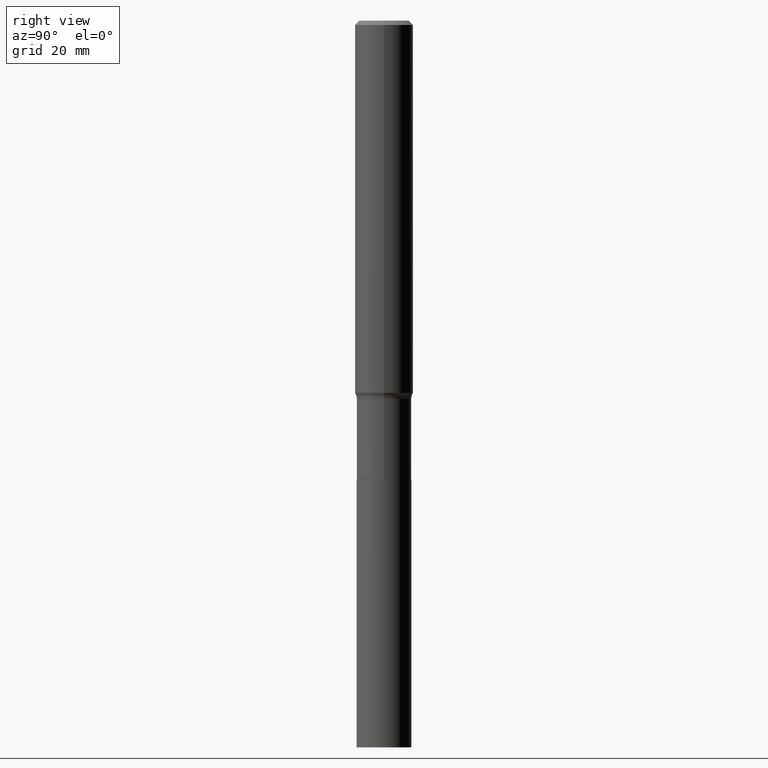
[diagram: clean part render]
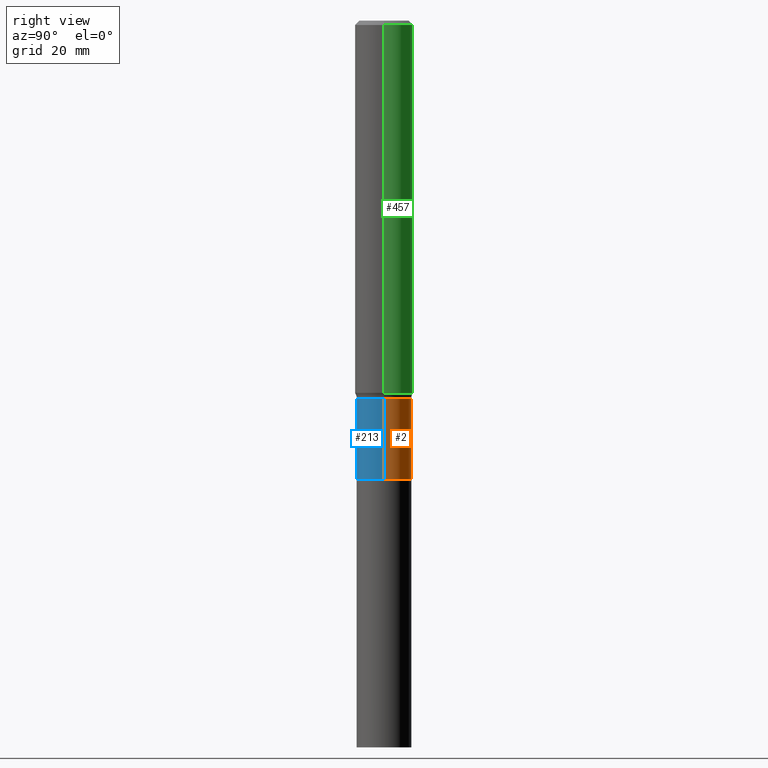
[diagram: same view with three faces highlighted in distinct colors, each labeled with its STEP entity id]
A machine part, right view with three faces highlighted in distinct colors.
Their STEP definitions:

[orange] entity #2 — the highlighted cylindrical surface (edge-blend (fillet) strip) has radius 4.7003 mm, axis along (-0, 0, 1).
#1 = ORIENTED_EDGE ( 'NONE', *, *, #451, .F. ) ;
#2 = ADVANCED_FACE ( 'NONE', ( #411 ), #162, .T. ) ;
#14 = VERTEX_POINT ( 'NONE', #90 ) ;
#26 = CARTESIAN_POINT ( 'NONE',  ( 7.604918893474536978E-29, -1.085780866753441274E-14, -3.109799999999999898 ) ) ;
#37 = ORIENTED_EDGE ( 'NONE', *, *, #340, .T. ) ;
#56 = CARTESIAN_POINT ( 'NONE',  ( -0.1850499999999999923, -8.588029188836748263E-15, -3.109799999999999898 ) ) ;
#90 = CARTESIAN_POINT ( 'NONE',  ( 0.1850499999999999923, -1.215000591104025780E-14, -3.109799999999999898 ) ) ;
#98 = DIRECTION ( 'NONE',  ( -2.445468806185136597E-29, 3.491481338843145583E-15, 1.000000000000000000 ) ) ;
#114 = VERTEX_POINT ( 'NONE', #341 ) ;
#139 = CARTESIAN_POINT ( 'NONE',  ( -0.1850499999999999368, 1.314859332524064945E-15, -9.102489384516700747E-30 ) ) ;
#154 = DIRECTION ( 'NONE',  ( 1.000000000000000000, -6.982962677686267499E-15, 4.876176775795935793E-29 ) ) ;
#162 = CYLINDRICAL_SURFACE ( 'NONE', #256, 0.1850499999999999368 ) ;
#170 = CARTESIAN_POINT ( 'NONE',  ( 0.1850499999999999090, -1.024016561869305716E-14, -2.562800000000000189 ) ) ;
#183 = DIRECTION ( 'NONE',  ( 1.000000000000000000, -6.982962677686272233E-15, 0.000000000000000000 ) ) ;
#194 = DIRECTION ( 'NONE',  ( 1.000000000000000000, -6.982962677686265133E-15, 0.000000000000000000 ) ) ;
#202 = CARTESIAN_POINT ( 'NONE',  ( 0.000000000000000000, 0.000000000000000000, 0.000000000000000000 ) ) ;
#210 = LINE ( 'NONE', #388, #461 ) ;
#214 = DIRECTION ( 'NONE',  ( -2.445468806185136877E-29, 3.491481338843145188E-15, 1.000000000000000000 ) ) ;
#241 = VECTOR ( 'NONE', #462, 39.37007874015748143 ) ;
#256 = AXIS2_PLACEMENT_3D ( 'NONE', #202, #310, #154 ) ;
#280 = CARTESIAN_POINT ( 'NONE',  ( 6.267247456491268883E-29, -8.947968375187213679E-15, -2.562800000000000189 ) ) ;
#283 = AXIS2_PLACEMENT_3D ( 'NONE', #280, #417, #194 ) ;
#300 = CIRCLE ( 'NONE', #453, 0.1850499999999999923 ) ;
#308 = EDGE_CURVE ( 'NONE', #14, #391, #210, .T. ) ;
#310 = DIRECTION ( 'NONE',  ( -2.445468806185136597E-29, 3.491481338843145583E-15, 1.000000000000000000 ) ) ;
#340 = EDGE_CURVE ( 'NONE', #14, #346, #300, .T. ) ;
#341 = CARTESIAN_POINT ( 'NONE',  ( -0.1850499999999999090, -8.588029188836748263E-15, -2.562800000000000189 ) ) ;
#346 = VERTEX_POINT ( 'NONE', #56 ) ;
#348 = EDGE_CURVE ( 'NONE', #346, #114, #352, .T. ) ;
#352 = LINE ( 'NONE', #139, #241 ) ;
#364 = ORIENTED_EDGE ( 'NONE', *, *, #348, .T. ) ;
#388 = CARTESIAN_POINT ( 'NONE',  ( 0.1850499999999999368, -1.292197243505843287E-15, 9.023365123610376264E-30 ) ) ;
#391 = VERTEX_POINT ( 'NONE', #170 ) ;
#411 = FACE_OUTER_BOUND ( 'NONE', #463, .T. ) ;
#412 = ORIENTED_EDGE ( 'NONE', *, *, #308, .F. ) ;
#417 = DIRECTION ( 'NONE',  ( -2.445468806185136597E-29, 3.491481338843145583E-15, 1.000000000000000000 ) ) ;
#438 = CIRCLE ( 'NONE', #283, 0.1850499999999999090 ) ;
#451 = EDGE_CURVE ( 'NONE', #391, #114, #438, .T. ) ;
#453 = AXIS2_PLACEMENT_3D ( 'NONE', #26, #98, #183 ) ;
#461 = VECTOR ( 'NONE', #214, 39.37007874015748143 ) ;
#462 = DIRECTION ( 'NONE',  ( -2.445468806185136877E-29, 3.491481338843145188E-15, 1.000000000000000000 ) ) ;
#463 = EDGE_LOOP ( 'NONE', ( #37, #364, #1, #412 ) ) ;

[blue] entity #213 — the highlighted cylindrical surface (edge-blend (fillet) strip) has radius 4.7003 mm, axis along (-0, 0, 1).
#5 = EDGE_CURVE ( 'NONE', #114, #391, #161, .T. ) ;
#14 = VERTEX_POINT ( 'NONE', #90 ) ;
#30 = ORIENTED_EDGE ( 'NONE', *, *, #348, .F. ) ;
#42 = CARTESIAN_POINT ( 'NONE',  ( 6.267247456491268883E-29, -8.947968375187213679E-15, -2.562800000000000189 ) ) ;
#56 = CARTESIAN_POINT ( 'NONE',  ( -0.1850499999999999923, -8.588029188836748263E-15, -3.109799999999999898 ) ) ;
#79 = FACE_OUTER_BOUND ( 'NONE', #141, .T. ) ;
#84 = ORIENTED_EDGE ( 'NONE', *, *, #5, .F. ) ;
#85 = AXIS2_PLACEMENT_3D ( 'NONE', #42, #236, #376 ) ;
#90 = CARTESIAN_POINT ( 'NONE',  ( 0.1850499999999999923, -1.215000591104025780E-14, -3.109799999999999898 ) ) ;
#97 = CARTESIAN_POINT ( 'NONE',  ( 7.604918893474536978E-29, -1.085780866753441274E-14, -3.109799999999999898 ) ) ;
#114 = VERTEX_POINT ( 'NONE', #341 ) ;
#129 = AXIS2_PLACEMENT_3D ( 'NONE', #97, #425, #356 ) ;
#130 = DIRECTION ( 'NONE',  ( 1.000000000000000000, -6.982962677686267499E-15, 4.876176775795935793E-29 ) ) ;
#139 = CARTESIAN_POINT ( 'NONE',  ( -0.1850499999999999368, 1.314859332524064945E-15, -9.102489384516700747E-30 ) ) ;
#141 = EDGE_LOOP ( 'NONE', ( #30, #151, #336, #84 ) ) ;
#151 = ORIENTED_EDGE ( 'NONE', *, *, #357, .T. ) ;
#161 = CIRCLE ( 'NONE', #85, 0.1850499999999999090 ) ;
#170 = CARTESIAN_POINT ( 'NONE',  ( 0.1850499999999999090, -1.024016561869305716E-14, -2.562800000000000189 ) ) ;
#210 = LINE ( 'NONE', #388, #461 ) ;
#213 = ADVANCED_FACE ( 'NONE', ( #79 ), #268, .T. ) ;
#214 = DIRECTION ( 'NONE',  ( -2.445468806185136877E-29, 3.491481338843145188E-15, 1.000000000000000000 ) ) ;
#230 = CARTESIAN_POINT ( 'NONE',  ( 0.000000000000000000, 0.000000000000000000, 0.000000000000000000 ) ) ;
#236 = DIRECTION ( 'NONE',  ( -2.445468806185136597E-29, 3.491481338843145583E-15, 1.000000000000000000 ) ) ;
#241 = VECTOR ( 'NONE', #462, 39.37007874015748143 ) ;
#257 = CIRCLE ( 'NONE', #129, 0.1850499999999999923 ) ;
#268 = CYLINDRICAL_SURFACE ( 'NONE', #309, 0.1850499999999999368 ) ;
#308 = EDGE_CURVE ( 'NONE', #14, #391, #210, .T. ) ;
#309 = AXIS2_PLACEMENT_3D ( 'NONE', #230, #339, #130 ) ;
#336 = ORIENTED_EDGE ( 'NONE', *, *, #308, .T. ) ;
#339 = DIRECTION ( 'NONE',  ( -2.445468806185136597E-29, 3.491481338843145583E-15, 1.000000000000000000 ) ) ;
#341 = CARTESIAN_POINT ( 'NONE',  ( -0.1850499999999999090, -8.588029188836748263E-15, -2.562800000000000189 ) ) ;
#346 = VERTEX_POINT ( 'NONE', #56 ) ;
#348 = EDGE_CURVE ( 'NONE', #346, #114, #352, .T. ) ;
#352 = LINE ( 'NONE', #139, #241 ) ;
#356 = DIRECTION ( 'NONE',  ( 1.000000000000000000, -6.982962677686272233E-15, 0.000000000000000000 ) ) ;
#357 = EDGE_CURVE ( 'NONE', #346, #14, #257, .T. ) ;
#376 = DIRECTION ( 'NONE',  ( 1.000000000000000000, -6.982962677686265133E-15, 0.000000000000000000 ) ) ;
#388 = CARTESIAN_POINT ( 'NONE',  ( 0.1850499999999999368, -1.292197243505843287E-15, 9.023365123610376264E-30 ) ) ;
#391 = VERTEX_POINT ( 'NONE', #170 ) ;
#425 = DIRECTION ( 'NONE',  ( -2.445468806185136597E-29, 3.491481338843145583E-15, 1.000000000000000000 ) ) ;
#461 = VECTOR ( 'NONE', #214, 39.37007874015748143 ) ;
#462 = DIRECTION ( 'NONE',  ( -2.445468806185136877E-29, 3.491481338843145188E-15, 1.000000000000000000 ) ) ;

[green] entity #457 — the highlighted cylindrical surface (edge-blend (fillet) strip) has radius 5 mm, axis along (-0, 0, 1).
#3 = EDGE_LOOP ( 'NONE', ( #286, #272, #429, #426 ) ) ;
#11 = CIRCLE ( 'NONE', #277, 0.1968500000000003303 ) ;
#16 = DIRECTION ( 'NONE',  ( -2.445468806185136877E-29, 3.491481338843145188E-15, 1.000000000000000000 ) ) ;
#28 = VECTOR ( 'NONE', #16, 39.37007874015748143 ) ;
#33 = VERTEX_POINT ( 'NONE', #204 ) ;
#60 = EDGE_CURVE ( 'NONE', #368, #70, #384, .T. ) ;
#70 = VERTEX_POINT ( 'NONE', #312 ) ;
#100 = CARTESIAN_POINT ( 'NONE',  ( -0.1968500000000003303, -7.403257612201241372E-15, -2.520981822134387151 ) ) ;
#140 = CARTESIAN_POINT ( 'NONE',  ( 0.1968500000000001915, -1.374596203102542989E-15, 9.598753983154309266E-30 ) ) ;
#145 = AXIS2_PLACEMENT_3D ( 'NONE', #152, #188, #166 ) ;
#152 = CARTESIAN_POINT ( 'NONE',  ( 0.000000000000000000, 0.000000000000000000, 0.000000000000000000 ) ) ;
#155 = FACE_OUTER_BOUND ( 'NONE', #3, .T. ) ;
#166 = DIRECTION ( 'NONE',  ( 1.000000000000000000, -6.982962677686266711E-15, 4.876176775795935793E-29 ) ) ;
#178 = VERTEX_POINT ( 'NONE', #275 ) ;
#186 = DIRECTION ( 'NONE',  ( 1.000000000000000000, -6.982962677686266711E-15, 0.000000000000000000 ) ) ;
#188 = DIRECTION ( 'NONE',  ( -2.445468806185136597E-29, 3.491481338843145583E-15, 1.000000000000000000 ) ) ;
#190 = EDGE_CURVE ( 'NONE', #178, #70, #282, .T. ) ;
#204 = CARTESIAN_POINT ( 'NONE',  ( 0.1968500000000003303, -1.017655719064754629E-14, -2.520981822134387151 ) ) ;
#216 = AXIS2_PLACEMENT_3D ( 'NONE', #337, #322, #302 ) ;
#251 = LINE ( 'NONE', #140, #392 ) ;
#255 = DIRECTION ( 'NONE',  ( -2.445468806185136877E-29, 3.491481338843145188E-15, 1.000000000000000000 ) ) ;
#272 = ORIENTED_EDGE ( 'NONE', *, *, #60, .T. ) ;
#275 = CARTESIAN_POINT ( 'NONE',  ( 0.1968500000000000250, -1.477690918335233294E-15, -0.02952750000000018207 ) ) ;
#277 = AXIS2_PLACEMENT_3D ( 'NONE', #385, #321, #186 ) ;
#282 = CIRCLE ( 'NONE', #216, 0.1968500000000000250 ) ;
#286 = ORIENTED_EDGE ( 'NONE', *, *, #342, .T. ) ;
#293 = EDGE_CURVE ( 'NONE', #33, #178, #251, .T. ) ;
#302 = DIRECTION ( 'NONE',  ( 1.000000000000000000, -6.982962677686265922E-15, 0.000000000000000000 ) ) ;
#312 = CARTESIAN_POINT ( 'NONE',  ( -0.1968500000000000250, -3.053824476045086846E-15, -0.02952750000000018207 ) ) ;
#321 = DIRECTION ( 'NONE',  ( -2.445468806185136597E-29, 3.491481338843145583E-15, 1.000000000000000000 ) ) ;
#322 = DIRECTION ( 'NONE',  ( -2.445468806185136597E-29, 3.491481338843145583E-15, 1.000000000000000000 ) ) ;
#323 = CARTESIAN_POINT ( 'NONE',  ( -0.1968500000000001915, 1.398703375343758577E-15, -9.682923725166790684E-30 ) ) ;
#337 = CARTESIAN_POINT ( 'NONE',  ( 7.220858017463206858E-31, -1.030947152326916240E-16, -0.02952750000000018207 ) ) ;
#342 = EDGE_CURVE ( 'NONE', #33, #368, #11, .T. ) ;
#368 = VERTEX_POINT ( 'NONE', #100 ) ;
#369 = CYLINDRICAL_SURFACE ( 'NONE', #145, 0.1968500000000001915 ) ;
#384 = LINE ( 'NONE', #323, #28 ) ;
#385 = CARTESIAN_POINT ( 'NONE',  ( 6.164982406989410044E-29, -8.801960987545001526E-15, -2.520981822134387151 ) ) ;
#392 = VECTOR ( 'NONE', #255, 39.37007874015748143 ) ;
#426 = ORIENTED_EDGE ( 'NONE', *, *, #293, .F. ) ;
#429 = ORIENTED_EDGE ( 'NONE', *, *, #190, .F. ) ;
#457 = ADVANCED_FACE ( 'NONE', ( #155 ), #369, .T. ) ;